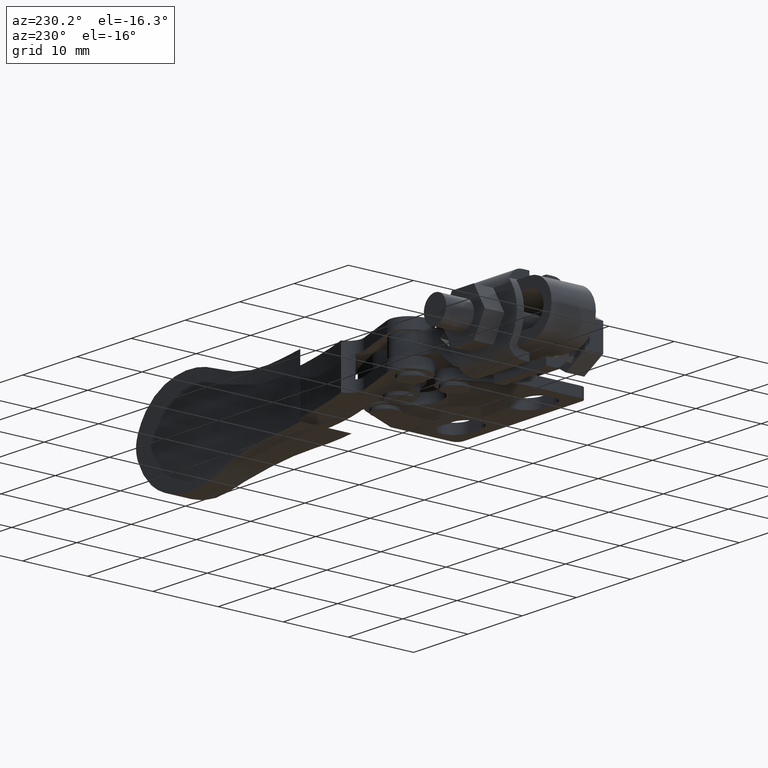
[diagram: clean part render]
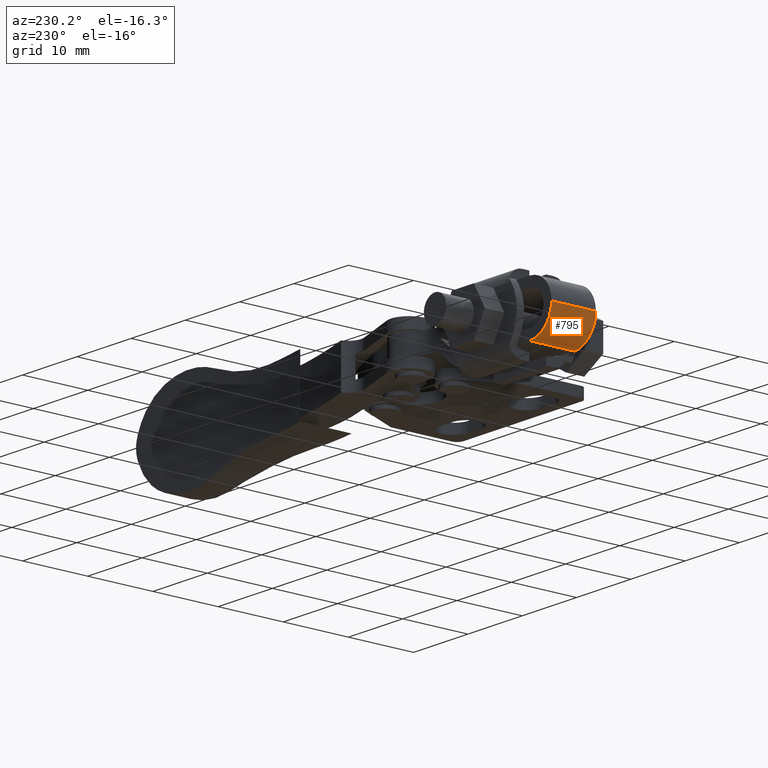
[diagram: same view with one face highlighted and labeled with its STEP entity id]
A machine part, auxiliary view. The second image highlights one B-rep face of the part: STEP entity #795.
In plain terms, the highlighted cylindrical surface (edge-blend (fillet) strip) has radius 4 mm, axis along (0, 1, 0).
Its self-contained STEP definition (entity closure, byte-faithful):
#236 = EDGE_CURVE ( 'NONE', #6542, #3080, #6812, .T. ) ;
#260 = VECTOR ( 'NONE', #8677, 1000.000000000000000 ) ;
#323 = FACE_OUTER_BOUND ( 'NONE', #9452, .T. ) ;
#795 = ADVANCED_FACE ( 'NONE', ( #323 ), #4157, .T. ) ;
#1023 = LINE ( 'NONE', #7912, #2580 ) ;
#1133 = EDGE_CURVE ( 'NONE', #6542, #3443, #1023, .T. ) ;
#1384 = CARTESIAN_POINT ( 'NONE',  ( -20.74232485882199800, 22.77000000000299500, 2.896525748841405700E-014 ) ) ;
#1617 = VERTEX_POINT ( 'NONE', #4586 ) ;
#1626 = CARTESIAN_POINT ( 'NONE',  ( -16.74232485882210500, 15.97000000000299900, -3.999999999999865000 ) ) ;
#2058 = CARTESIAN_POINT ( 'NONE',  ( -16.74232485882210500, 15.97000000000299600, 2.821974769510298500E-014 ) ) ;
#2123 = DIRECTION ( 'NONE',  ( 2.657379524761970900E-016, 1.000000000000000000, 1.456761602006292800E-016 ) ) ;
#2176 = CARTESIAN_POINT ( 'NONE',  ( -16.74232485882210900, 11.60000000000009200, 2.758314287502580600E-014 ) ) ;
#2580 = VECTOR ( 'NONE', #8668, 1000.000000000000000 ) ;
#3080 = VERTEX_POINT ( 'NONE', #1626 ) ;
#3272 = AXIS2_PLACEMENT_3D ( 'NONE', #2058, #4330, #5170 ) ;
#3382 = EDGE_CURVE ( 'NONE', #1617, #3443, #8154, .T. ) ;
#3443 = VERTEX_POINT ( 'NONE', #1384 ) ;
#3611 = ORIENTED_EDGE ( 'NONE', *, *, #3382, .F. ) ;
#4157 = CYLINDRICAL_SURFACE ( 'NONE', #5986, 3.999999999999892500 ) ;
#4330 = DIRECTION ( 'NONE',  ( -1.390766032191824800E-019, -1.000000000000000000, -1.456761602006293000E-016 ) ) ;
#4412 = DIRECTION ( 'NONE',  ( 2.657379524761970900E-016, 1.000000000000000000, 1.456761602006292800E-016 ) ) ;
#4568 = LINE ( 'NONE', #5600, #260 ) ;
#4577 = AXIS2_PLACEMENT_3D ( 'NONE', #9016, #4412, #9793 ) ;
#4586 = CARTESIAN_POINT ( 'NONE',  ( -16.74232485882210500, 22.77000000000299800, -3.999999999999863200 ) ) ;
#4808 = DIRECTION ( 'NONE',  ( -1.000000000000000000, 0.0000000000000000000, 6.255271215723501200E-017 ) ) ;
#5170 = DIRECTION ( 'NONE',  ( 1.000000000000000000, 0.0000000000000000000, -6.255271215723578800E-017 ) ) ;
#5183 = ORIENTED_EDGE ( 'NONE', *, *, #1133, .T. ) ;
#5600 = CARTESIAN_POINT ( 'NONE',  ( -16.74232485882210900, 11.60000000000009200, -3.999999999999865000 ) ) ;
#5986 = AXIS2_PLACEMENT_3D ( 'NONE', #2176, #2123, #4808 ) ;
#6313 = CARTESIAN_POINT ( 'NONE',  ( -20.74232485882199800, 15.97000000000299600, 2.896525748841405700E-014 ) ) ;
#6542 = VERTEX_POINT ( 'NONE', #6313 ) ;
#6812 = CIRCLE ( 'NONE', #3272, 3.999999999999892500 ) ;
#7912 = CARTESIAN_POINT ( 'NONE',  ( -20.74232485882200200, 11.60000000000009200, 2.783335372365474100E-014 ) ) ;
#8154 = CIRCLE ( 'NONE', #4577, 3.999999999999892500 ) ;
#8668 = DIRECTION ( 'NONE',  ( 2.657379524761970900E-016, 1.000000000000000000, 1.456761602006292800E-016 ) ) ;
#8677 = DIRECTION ( 'NONE',  ( 2.657379524761970900E-016, 1.000000000000000000, 1.456761602006292800E-016 ) ) ;
#9016 = CARTESIAN_POINT ( 'NONE',  ( -16.74232485882210500, 22.77000000000299500, 2.921034558446725600E-014 ) ) ;
#9021 = ORIENTED_EDGE ( 'NONE', *, *, #236, .F. ) ;
#9229 = EDGE_CURVE ( 'NONE', #3080, #1617, #4568, .T. ) ;
#9452 = EDGE_LOOP ( 'NONE', ( #9021, #5183, #3611, #9743 ) ) ;
#9743 = ORIENTED_EDGE ( 'NONE', *, *, #9229, .F. ) ;
#9793 = DIRECTION ( 'NONE',  ( -1.000000000000000000, 0.0000000000000000000, 6.255271215723578800E-017 ) ) ;